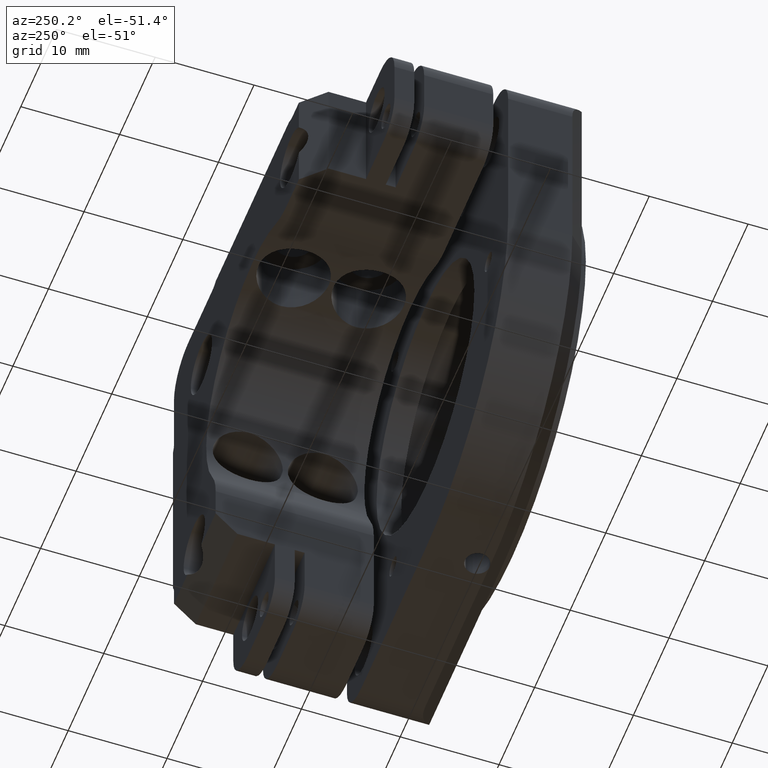
[diagram: clean part render]
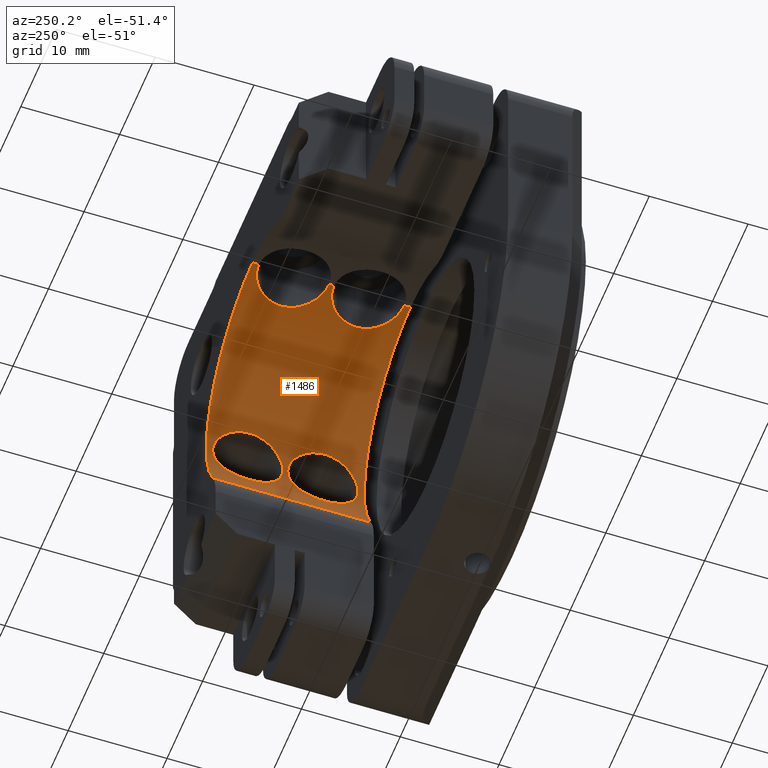
[diagram: same view with one face highlighted and labeled with its STEP entity id]
A machine part, auxiliary view. The second image highlights one B-rep face of the part: STEP entity #1486.
In plain terms, the highlighted cylindrical surface (partial cylindrical patch) has radius 13 mm, axis along (0, 1, 0).
Its self-contained STEP definition (entity closure, byte-faithful):
#77 = CARTESIAN_POINT ( 'NONE',  ( 141.0330478913104700, 70.09290035377264900, -25.55851048984864700 ) ) ;
#113 = EDGE_CURVE ( 'NONE', #2569, #843, #2893, .T. ) ;
#133 = CARTESIAN_POINT ( 'NONE',  ( 141.1535383277341100, 63.26079757182519400, -25.04516060960250100 ) ) ;
#140 = AXIS2_PLACEMENT_3D ( 'NONE', #6717, #3166, #5466 ) ;
#157 = CARTESIAN_POINT ( 'NONE',  ( 140.9352422205957700, 68.51614554544700300, -25.91943090214629900 ) ) ;
#158 = CARTESIAN_POINT ( 'NONE',  ( 140.9967566309561000, 62.06453673318018400, -19.00220452352538200 ) ) ;
#187 = CARTESIAN_POINT ( 'NONE',  ( 141.3162549048651000, 71.59496322165749400, -20.58715690706946000 ) ) ;
#188 = CARTESIAN_POINT ( 'NONE',  ( 140.9675482533430700, 61.84139288891009300, -25.80461543014877500 ) ) ;
#253 = CARTESIAN_POINT ( 'NONE',  ( 130.2562495503778700, 57.80418208018949900, -9.476647169711297300 ) ) ;
#261 = CARTESIAN_POINT ( 'NONE',  ( 128.9088687819144100, 72.05400072298751000, -9.356538082368320600 ) ) ;
#268 = CARTESIAN_POINT ( 'NONE',  ( 141.2188804144732600, 65.84213691339704200, -24.71576345172083200 ) ) ;
#355 = EDGE_CURVE ( 'NONE', #1758, #7256, #3833, .T. ) ;
#416 = CARTESIAN_POINT ( 'NONE',  ( 141.0609236984925900, 59.13402540868237600, -25.44847234909495300 ) ) ;
#446 = CARTESIAN_POINT ( 'NONE',  ( 141.3426965748580500, 65.32852661331207900, -20.78939035598730500 ) ) ;
#467 = CARTESIAN_POINT ( 'NONE',  ( 141.3108644461912300, 57.83737447469201200, -24.15183788684400700 ) ) ;
#514 = CARTESIAN_POINT ( 'NONE',  ( 141.4277006766217300, 57.38960236071629600, -22.83821817093685900 ) ) ;
#552 = B_SPLINE_CURVE_WITH_KNOTS ( 'NONE', 3,
 ( #4858, #1299, #1891, #676, #3692, #5356, #4809, #4883, #1348, #3106, #5458, #187, #1270, #7229, #3667, #3006, #5949, #6004, #1324, #2498, #6602, #6028, #5923, #1847, #1923, #3596, #6551, #3078, #77, #3032, #7202, #7147, #1871, #157 ),
 .UNSPECIFIED., .F., .F.,
 ( 4, 2, 2, 2, 2, 2, 2, 2, 2, 2, 2, 2, 2, 2, 2, 2, 4 ),
 ( 0.006478271953857227400, 0.007175474066478038600, 0.007872676179098848900, 0.008569878291719660100, 0.009267080404340471300, 0.009964282516961282500, 0.01066148462958209400, 0.01135868674220290300, 0.01205588885482371600, 0.01275309096744452500, 0.01345029308006533800, 0.01414749519268614800, 0.01484469730530695700, 0.01554189941792777000, 0.01623910153054858000, 0.01693630364316939300, 0.01763350575579020200 ),
 .UNSPECIFIED. ) ;
#564 = EDGE_CURVE ( 'NONE', #5107, #4384, #1339, .T. ) ;
#643 = CARTESIAN_POINT ( 'NONE',  ( 130.0449066351351100, 57.69624033583704700, -9.448206055807066400 ) ) ;
#676 = CARTESIAN_POINT ( 'NONE',  ( 140.9782169897399100, 69.44209695814298300, -18.93432130144909600 ) ) ;
#705 = CARTESIAN_POINT ( 'NONE',  ( 140.9352422205957700, 61.14885895875145400, -25.91943090214629900 ) ) ;
#751 = CARTESIAN_POINT ( 'NONE',  ( 140.9529625343090500, 61.38512712430807000, -18.84290245899030600 ) ) ;
#773 = ORIENTED_EDGE ( 'NONE', *, *, #1497, .F. ) ;
#793 = CARTESIAN_POINT ( 'NONE',  ( 132.0816351898139900, 68.51614554544700300, -9.871973503120214500 ) ) ;
#805 = CARTESIAN_POINT ( 'NONE',  ( 141.4345159116081200, 64.46615246585852800, -22.60169448826739100 ) ) ;
#820 = CARTESIAN_POINT ( 'NONE',  ( 130.2551931100754500, 65.40353956257307300, -9.476487455404273100 ) ) ;
#822 = CARTESIAN_POINT ( 'NONE',  ( 131.1739221378729500, 58.53375579434947400, -9.640671158258273400 ) ) ;
#843 = VERTEX_POINT ( 'NONE', #5258 ) ;
#870 = CARTESIAN_POINT ( 'NONE',  ( 130.8380795961157300, 65.80732717045957300, -9.572911974570143200 ) ) ;
#886 = CARTESIAN_POINT ( 'NONE',  ( 128.4348757045770200, 57.36746443804704400, -9.350000000000001400 ) ) ;
#961 = CARTESIAN_POINT ( 'NONE',  ( 141.4344945851558500, 57.36619567367861800, -22.60553993055523100 ) ) ;
#979 = VERTEX_POINT ( 'NONE', #5913 ) ;
#989 = CARTESIAN_POINT ( 'NONE',  ( 140.9967354786518000, 59.76827625568785900, -19.00214825927259800 ) ) ;
#1000 = EDGE_CURVE ( 'NONE', #4098, #7256, #7635, .T. ) ;
#1062 = CARTESIAN_POINT ( 'NONE',  ( 128.4348757045770200, 56.71614554938509700, -22.35000000000000100 ) ) ;
#1070 = CARTESIAN_POINT ( 'NONE',  ( 141.0704058492464700, 66.73403806447760200, -19.29045597165415400 ) ) ;
#1104 = EDGE_LOOP ( 'NONE', ( #4277, #2805 ) ) ;
#1151 = VERTEX_POINT ( 'NONE', #6957 ) ;
#1164 = DIRECTION ( 'NONE',  ( 0.0000000000000000000, 1.000000000000000000, 0.0000000000000000000 ) ) ;
#1165 = VERTEX_POINT ( 'NONE', #6256 ) ;
#1211 = CARTESIAN_POINT ( 'NONE',  ( 131.7068078020538700, 59.31082367544659900, -9.768121466196049600 ) ) ;
#1257 = CARTESIAN_POINT ( 'NONE',  ( 128.4348757045770200, 57.36746443804704400, -9.350000000000001400 ) ) ;
#1261 = DIRECTION ( 'NONE',  ( 0.0000000000000000000, 1.000000000000000000, 0.0000000000000000000 ) ) ;
#1270 = CARTESIAN_POINT ( 'NONE',  ( 141.3430680723100700, 71.70527728859913500, -20.79252708450965100 ) ) ;
#1299 = CARTESIAN_POINT ( 'NONE',  ( 140.9462737817417200, 68.74841352833411200, -18.81943090214629800 ) ) ;
#1300 = CARTESIAN_POINT ( 'NONE',  ( 140.9352422205957700, 60.91614554544670300, -25.91943090214629900 ) ) ;
#1324 = CARTESIAN_POINT ( 'NONE',  ( 141.4278177565675800, 72.04310974925999700, -22.83581312828993500 ) ) ;
#1338 = EDGE_CURVE ( 'NONE', #1944, #2149, #6245, .T. ) ;
#1339 = B_SPLINE_CURVE_WITH_KNOTS ( 'NONE', 3,
 ( #1949, #6005, #751, #6029, #158, #3058, #7283, #1892, #4274, #5484, #7179, #6603, #2527, #2001, #5439, #4884, #6633, #805, #3641, #2578, #5512, #3107, #3079, #2499, #6682, #133, #6055, #1973, #6574, #4249, #188, #4859, #705, #1300 ),
 .UNSPECIFIED., .F., .F.,
 ( 4, 2, 2, 2, 2, 2, 2, 2, 2, 2, 2, 2, 2, 2, 2, 2, 4 ),
 ( 0.004655503562086602200, 0.005352252918581791400, 0.006049002275076979800, 0.006745751631572188100, 0.007442500988067395600, 0.008139250344562604800, 0.008835999701057811400, 0.009532749057553018000, 0.01022949841404822600, 0.01092624777054343500, 0.01162299712703864300, 0.01231974648353385000, 0.01301649584002905600, 0.01371324519652426500, 0.01440999455301947300, 0.01510674390951469900, 0.01580349326600992400 ),
 .UNSPECIFIED. ) ;
#1348 = CARTESIAN_POINT ( 'NONE',  ( 141.1619805617106400, 70.86222853241848400, -19.69503729831505400 ) ) ;
#1357 = CARTESIAN_POINT ( 'NONE',  ( 128.4348757045770200, 72.06482665284687500, -9.349999999999999600 ) ) ;
#1376 = CARTESIAN_POINT ( 'NONE',  ( 128.9096332133771300, 64.45389575256098200, -9.356572265664691900 ) ) ;
#1421 = CARTESIAN_POINT ( 'NONE',  ( 132.0574229696146300, 68.03956981338583900, -9.864826675623815400 ) ) ;
#1427 = CARTESIAN_POINT ( 'NONE',  ( 131.8922915524021800, 62.08407137585267300, -9.817827811805914400 ) ) ;
#1486 = ADVANCED_FACE ( 'NONE', ( #1555, #5236, #2761 ), #4036, .F. ) ;
#1497 = EDGE_CURVE ( 'NONE', #4384, #5107, #5441, .T. ) ;
#1504 = CARTESIAN_POINT ( 'NONE',  ( 128.4348757045770200, 56.71614554938509700, -9.350000000000001400 ) ) ;
#1513 = DIRECTION ( 'NONE',  ( 2.135044278125300600E-015, 0.0000000000000000000, 1.000000000000000000 ) ) ;
#1555 = FACE_BOUND ( 'NONE', #6754, .T. ) ;
#1573 = EDGE_CURVE ( 'NONE', #1944, #979, #3115, .T. ) ;
#1589 = CARTESIAN_POINT ( 'NONE',  ( 141.0328915214880400, 59.34072145787459400, -25.55911479443593800 ) ) ;
#1608 = AXIS2_PLACEMENT_3D ( 'NONE', #6207, #2776, #1513 ) ;
#1612 = DIRECTION ( 'NONE',  ( 0.0000000000000000000, 1.000000000000000000, 0.0000000000000000000 ) ) ;
#1641 = CARTESIAN_POINT ( 'NONE',  ( 140.9462737817417200, 60.91614554544670300, -18.81943090214629800 ) ) ;
#1653 = ORIENTED_EDGE ( 'NONE', *, *, #1000, .F. ) ;
#1664 = CARTESIAN_POINT ( 'NONE',  ( 141.4292014147547700, 57.38922140719203200, -21.90256029373406900 ) ) ;
#1673 = CARTESIAN_POINT ( 'NONE',  ( 141.3109946268109500, 65.43679165857551500, -24.15107423172362300 ) ) ;
#1681 = B_SPLINE_CURVE_WITH_KNOTS ( 'NONE', 3,
 ( #793, #4239, #1421, #4418, #6202, #3874, #5552, #2592, #6122, #870, #6096, #820, #2617, #2694, #6151, #3171, #6777, #6697 ),
 .UNSPECIFIED., .F., .F.,
 ( 4, 2, 2, 2, 2, 2, 2, 2, 4 ),
 ( 0.01062670440922161900, 0.01133600254528292800, 0.01204530068134423800, 0.01275459881740554800, 0.01346389695346685700, 0.01417319508952816600, 0.01488249322558947600, 0.01559179136165078600, 0.01630108949771209500 ),
 .UNSPECIFIED. ) ;
#1758 = VERTEX_POINT ( 'NONE', #1504 ) ;
#1808 = VECTOR ( 'NONE', #6374, 1000.000000000000000 ) ;
#1837 = CARTESIAN_POINT ( 'NONE',  ( 132.0816351898139700, 60.67764386539190000, -9.871973503120212700 ) ) ;
#1847 = CARTESIAN_POINT ( 'NONE',  ( 141.2506638792281700, 71.33529596304565200, -24.53953536407471600 ) ) ;
#1871 = CARTESIAN_POINT ( 'NONE',  ( 140.9352422205957700, 68.75112158667452900, -25.91943090214631000 ) ) ;
#1891 = CARTESIAN_POINT ( 'NONE',  ( 140.9528348195274000, 68.98273442893618300, -18.84244085377925500 ) ) ;
#1892 = CARTESIAN_POINT ( 'NONE',  ( 141.1300219676951700, 63.08315973136168300, -19.54809538675204200 ) ) ;
#1923 = CARTESIAN_POINT ( 'NONE',  ( 141.2185534996015100, 71.18860953615997300, -24.71752134321909400 ) ) ;
#1925 = CARTESIAN_POINT ( 'NONE',  ( 130.6719743960236100, 71.38687430811292200, -9.539349535068293300 ) ) ;
#1944 = VERTEX_POINT ( 'NONE', #1357 ) ;
#1949 = CARTESIAN_POINT ( 'NONE',  ( 140.9462737817417200, 60.91614554544670300, -18.81943090214629800 ) ) ;
#1971 = CARTESIAN_POINT ( 'NONE',  ( 132.0816351898139900, 60.91614554544690200, -9.871973503120212700 ) ) ;
#1973 = CARTESIAN_POINT ( 'NONE',  ( 141.0611128565023200, 62.69943716783802000, -25.44765555800565300 ) ) ;
#1996 = CARTESIAN_POINT ( 'NONE',  ( 131.9637703775153200, 61.85365422764385800, -9.838033927933977900 ) ) ;
#2001 = CARTESIAN_POINT ( 'NONE',  ( 141.3876012872644600, 64.28344999604105700, -21.22174598384276900 ) ) ;
#2149 = VERTEX_POINT ( 'NONE', #6739 ) ;
#2158 = CARTESIAN_POINT ( 'NONE',  ( 141.4352254803749000, 57.36609557774529800, -22.13483168606556400 ) ) ;
#2184 = CARTESIAN_POINT ( 'NONE',  ( 140.9528191930493800, 60.45083786465597300, -18.84239290471776200 ) ) ;
#2192 = CARTESIAN_POINT ( 'NONE',  ( 141.1299390990076600, 66.34960055306618200, -19.54771573361567100 ) ) ;
#2269 = CARTESIAN_POINT ( 'NONE',  ( 141.4290761208997900, 64.98970138571047500, -21.89972925309023900 ) ) ;
#2343 = B_SPLINE_CURVE_WITH_KNOTS ( 'NONE', 3,
 ( #3765, #2571, #1376, #6049, #6127, #7224, #2547, #7324, #6726, #4955, #4267, #2622, #6654, #1427, #1996, #4855, #4292, #6677 ),
 .UNSPECIFIED., .F., .F.,
 ( 4, 2, 2, 2, 2, 2, 2, 2, 4 ),
 ( 0.006003326236175158200, 0.006713018358796438200, 0.007422710481417718100, 0.008132402604038998000, 0.008842094726660278800, 0.009551786849281557900, 0.01026147897190283900, 0.01097117109452411900, 0.01168086321714539900 ),
 .UNSPECIFIED. ) ;
#2490 = CARTESIAN_POINT ( 'NONE',  ( 132.0816351898139900, 60.91614554544690200, -9.871973503120212700 ) ) ;
#2498 = CARTESIAN_POINT ( 'NONE',  ( 141.4026096259654800, 71.95167285736867800, -23.29362837286409500 ) ) ;
#2499 = CARTESIAN_POINT ( 'NONE',  ( 141.2510962630788400, 63.73717588144850800, -24.53680377295760800 ) ) ;
#2527 = CARTESIAN_POINT ( 'NONE',  ( 141.3433020604791200, 64.10621123406812700, -20.79481957328622600 ) ) ;
#2547 = CARTESIAN_POINT ( 'NONE',  ( 130.2571590887501400, 64.02761446381219900, -9.476774821206573700 ) ) ;
#2569 = VERTEX_POINT ( 'NONE', #5601 ) ;
#2571 = CARTESIAN_POINT ( 'NONE',  ( 128.6736644199866100, 64.47133754308575200, -9.349999999999999600 ) ) ;
#2578 = CARTESIAN_POINT ( 'NONE',  ( 141.4025038943705700, 64.35128255810094800, -23.29503303134526600 ) ) ;
#2579 = CARTESIAN_POINT ( 'NONE',  ( 132.0816351898139900, 68.51614554544700300, -9.871973503120214500 ) ) ;
#2592 = CARTESIAN_POINT ( 'NONE',  ( 131.3279517005623500, 66.31645445005122500, -9.675267540200136900 ) ) ;
#2605 = CARTESIAN_POINT ( 'NONE',  ( 131.9636781649912200, 69.45391399284113700, -9.838008016095196600 ) ) ;
#2609 = CARTESIAN_POINT ( 'NONE',  ( 141.0332954305549700, 66.93733634434022400, -25.55754978872116100 ) ) ;
#2617 = CARTESIAN_POINT ( 'NONE',  ( 130.0452949881739400, 65.29641597399886200, -9.448253140820529700 ) ) ;
#2622 = CARTESIAN_POINT ( 'NONE',  ( 131.5958600466644300, 62.72413788924946200, -9.739410604414658200 ) ) ;
#2662 = CARTESIAN_POINT ( 'NONE',  ( 141.4345176519504700, 64.96612769175610000, -22.60252763532025400 ) ) ;
#2694 = CARTESIAN_POINT ( 'NONE',  ( 129.6072701915566900, 65.12485761289764200, -9.401099913342905600 ) ) ;
#2761 = FACE_OUTER_BOUND ( 'NONE', #6873, .T. ) ;
#2776 = DIRECTION ( 'NONE',  ( -0.0000000000000000000, -1.000000000000000000, -0.0000000000000000000 ) ) ;
#2785 = CARTESIAN_POINT ( 'NONE',  ( 141.2576487962433900, 65.69518946057174000, -20.20195790089275800 ) ) ;
#2801 = CARTESIAN_POINT ( 'NONE',  ( 140.9352422205957700, 60.91614554544670300, -25.91943090214629900 ) ) ;
#2805 = ORIENTED_EDGE ( 'NONE', *, *, #6046, .F. ) ;
#2806 = CARTESIAN_POINT ( 'NONE',  ( 141.3380339823387400, 57.72816391075776500, -23.94854373532218600 ) ) ;
#2815 = CARTESIAN_POINT ( 'NONE',  ( 141.4052940684135000, 65.08094265455220300, -21.44433136736430600 ) ) ;
#2893 = LINE ( 'NONE', #4412, #5017 ) ;
#2970 = CARTESIAN_POINT ( 'NONE',  ( 130.6544188174501900, 58.06090457978397300, -9.539291817024050600 ) ) ;
#2978 = ORIENTED_EDGE ( 'NONE', *, *, #6567, .F. ) ;
#3006 = CARTESIAN_POINT ( 'NONE',  ( 141.4291409855757100, 72.04283746550650800, -21.90163468005212600 ) ) ;
#3032 = CARTESIAN_POINT ( 'NONE',  ( 140.9863245929336700, 69.66419020050742000, -25.73668168167922200 ) ) ;
#3058 = CARTESIAN_POINT ( 'NONE',  ( 141.0432048501656700, 62.49566642773037700, -19.18162137405741100 ) ) ;
#3071 = CARTESIAN_POINT ( 'NONE',  ( 131.8921760121220600, 59.74758026895576500, -9.817790231832809400 ) ) ;
#3076 = CARTESIAN_POINT ( 'NONE',  ( 140.9462737817417200, 60.91614554544670300, -18.81943090214629800 ) ) ;
#3078 = CARTESIAN_POINT ( 'NONE',  ( 141.0606364763745300, 70.29618689996212300, -25.44961635574766500 ) ) ;
#3079 = CARTESIAN_POINT ( 'NONE',  ( 141.3106310490660200, 63.99395025610856200, -24.15348120435162100 ) ) ;
#3106 = CARTESIAN_POINT ( 'NONE',  ( 141.2261271184146900, 71.19080262355819900, -20.02364829404297100 ) ) ;
#3107 = CARTESIAN_POINT ( 'NONE',  ( 141.3383223413149200, 64.10527063741288600, -23.94615207912626800 ) ) ;
#3115 = LINE ( 'NONE', #3564, #4130 ) ;
#3163 = CARTESIAN_POINT ( 'NONE',  ( 140.9352422205957700, 68.28125076757720500, -25.91943090214628900 ) ) ;
#3166 = DIRECTION ( 'NONE',  ( -0.0000000000000000000, -1.000000000000000000, -0.0000000000000000000 ) ) ;
#3171 = CARTESIAN_POINT ( 'NONE',  ( 128.9077783386946700, 64.97813593535757100, -9.356488090370900700 ) ) ;
#3343 = CARTESIAN_POINT ( 'NONE',  ( 141.2255684174487600, 58.24426427856569400, -20.02069197725160900 ) ) ;
#3349 = EDGE_CURVE ( 'NONE', #1151, #4098, #2343, .T. ) ;
#3367 = CARTESIAN_POINT ( 'NONE',  ( 141.4026302784959300, 57.48054699758051100, -23.29297351353378800 ) ) ;
#3392 = CARTESIAN_POINT ( 'NONE',  ( 141.3872954929842400, 57.55002980990257600, -21.21821784109224000 ) ) ;
#3401 = CARTESIAN_POINT ( 'NONE',  ( 140.9462737817417200, 68.51614554544700300, -18.81943090214629800 ) ) ;
#3421 = CARTESIAN_POINT ( 'NONE',  ( 141.2185835418865200, 58.24352026703822800, -24.71738037450999000 ) ) ;
#3564 = CARTESIAN_POINT ( 'NONE',  ( 128.4348757045770200, 56.71614554938509700, -9.350000000000001400 ) ) ;
#3596 = CARTESIAN_POINT ( 'NONE',  ( 141.1539082922769800, 70.86265264194187800, -25.04328522637825900 ) ) ;
#3641 = CARTESIAN_POINT ( 'NONE',  ( 141.4277470172753800, 64.44285989233749500, -22.83760983452095100 ) ) ;
#3667 = CARTESIAN_POINT ( 'NONE',  ( 141.4054338056403400, 71.95188563400164100, -21.44634951444681200 ) ) ;
#3669 = CARTESIAN_POINT ( 'NONE',  ( 131.3294577030854400, 70.71392554332322800, -9.675612575277554600 ) ) ;
#3692 = CARTESIAN_POINT ( 'NONE',  ( 140.9967190815677300, 69.66386873470628400, -19.00208444670468600 ) ) ;
#3693 = CARTESIAN_POINT ( 'NONE',  ( 129.3760301196616100, 71.97240387530416700, -9.382002837397152500 ) ) ;
#3763 = CARTESIAN_POINT ( 'NONE',  ( 130.8376809170770200, 58.20697328333645300, -9.572835131295287100 ) ) ;
#3765 = CARTESIAN_POINT ( 'NONE',  ( 128.4348757045770200, 64.46482665284675300, -9.350000000000001400 ) ) ;
#3775 = CARTESIAN_POINT ( 'NONE',  ( 141.1542328275708700, 66.16789936025520500, -25.04175918497435700 ) ) ;
#3833 = LINE ( 'NONE', #4095, #1808 ) ;
#3874 = CARTESIAN_POINT ( 'NONE',  ( 131.7070439951004300, 66.91136464672520400, -9.768184472587170900 ) ) ;
#3939 = CARTESIAN_POINT ( 'NONE',  ( 141.0427756846872000, 59.34028575531189600, -19.17993843073236000 ) ) ;
#3963 = CARTESIAN_POINT ( 'NONE',  ( 140.9462737817417200, 60.68188464013955000, -18.81943090214630500 ) ) ;
#3969 = CARTESIAN_POINT ( 'NONE',  ( 141.4278980406905900, 64.98889948270951300, -22.83364038752523900 ) ) ;
#3975 = VERTEX_POINT ( 'NONE', #7123 ) ;
#3988 = CARTESIAN_POINT ( 'NONE',  ( 141.1296809205455000, 58.75106377976705100, -19.54653360267347000 ) ) ;
#4010 = CARTESIAN_POINT ( 'NONE',  ( 140.9352422205957700, 60.68339655200978900, -25.91943090214629600 ) ) ;
#4036 = CYLINDRICAL_SURFACE ( 'NONE', #7617, 13.00000000000000200 ) ;
#4060 = ORIENTED_EDGE ( 'NONE', *, *, #7624, .T. ) ;
#4095 = CARTESIAN_POINT ( 'NONE',  ( 128.4348757045770200, 56.71614554938509700, -9.350000000000001400 ) ) ;
#4098 = VERTEX_POINT ( 'NONE', #1971 ) ;
#4130 = VECTOR ( 'NONE', #1164, 1000.000000000000000 ) ;
#4158 = EDGE_CURVE ( 'NONE', #843, #979, #7346, .T. ) ;
#4185 = CARTESIAN_POINT ( 'NONE',  ( 131.5938188440778700, 59.10482934600722200, -9.738903758690009100 ) ) ;
#4239 = CARTESIAN_POINT ( 'NONE',  ( 132.0816351898139700, 68.27690668779582900, -9.871973503120191400 ) ) ;
#4240 = CARTESIAN_POINT ( 'NONE',  ( 129.3770155418619700, 57.46004621621845100, -9.382053112572299000 ) ) ;
#4249 = CARTESIAN_POINT ( 'NONE',  ( 140.9861859921165000, 62.06276731877612500, -25.73719857294590000 ) ) ;
#4267 = CARTESIAN_POINT ( 'NONE',  ( 131.3292676581401400, 63.11422717740590100, -9.675565806154510900 ) ) ;
#4274 = CARTESIAN_POINT ( 'NONE',  ( 141.1624762083295400, 63.26485480857461900, -19.69748027896755700 ) ) ;
#4277 = ORIENTED_EDGE ( 'NONE', *, *, #5817, .F. ) ;
#4292 = CARTESIAN_POINT ( 'NONE',  ( 132.0816351898139900, 61.15473790364367100, -9.871973503120216300 ) ) ;
#4339 = DIRECTION ( 'NONE',  ( 0.0000000000000000000, 1.000000000000000000, 0.0000000000000000000 ) ) ;
#4367 = CARTESIAN_POINT ( 'NONE',  ( 129.6070419333120800, 57.52479178004058000, -9.401080627790591400 ) ) ;
#4382 = CARTESIAN_POINT ( 'NONE',  ( 141.2509388983895300, 65.69577505075332600, -24.53788278934121400 ) ) ;
#4384 = VERTEX_POINT ( 'NONE', #2801 ) ;
#4412 = CARTESIAN_POINT ( 'NONE',  ( 139.6217154267385200, 56.71614554938509700, -28.97228185980251400 ) ) ;
#4418 = CARTESIAN_POINT ( 'NONE',  ( 131.9631900599268000, 67.57660572724557800, -9.837869908086053900 ) ) ;
#4531 = CARTESIAN_POINT ( 'NONE',  ( 141.1538165064403400, 58.57011107203951600, -25.04373732683776400 ) ) ;
#4563 = CARTESIAN_POINT ( 'NONE',  ( 141.1616889029759500, 66.17169141755678700, -19.69369083689806700 ) ) ;
#4591 = CARTESIAN_POINT ( 'NONE',  ( 141.3160064171010500, 65.43836869011379100, -20.58532830623621700 ) ) ;
#4636 = EDGE_CURVE ( 'NONE', #2569, #1758, #7441, .T. ) ;
#4746 = CARTESIAN_POINT ( 'NONE',  ( 131.9630376241448500, 59.97606357537917900, -9.837826806240451900 ) ) ;
#4809 = CARTESIAN_POINT ( 'NONE',  ( 141.0706724868291500, 70.30012842303285900, -19.29155792843876700 ) ) ;
#4855 = CARTESIAN_POINT ( 'NONE',  ( 132.0578249875329100, 61.38991762811468800, -9.864943688779250800 ) ) ;
#4858 = CARTESIAN_POINT ( 'NONE',  ( 140.9462737817417200, 68.51614554544700300, -18.81943090214629800 ) ) ;
#4859 = CARTESIAN_POINT ( 'NONE',  ( 140.9420104449256100, 61.38536899430155800, -25.89595961223193800 ) ) ;
#4883 = CARTESIAN_POINT ( 'NONE',  ( 141.1301776366436200, 70.68407601343344000, -19.54879720813803000 ) ) ;
#4884 = CARTESIAN_POINT ( 'NONE',  ( 141.4293246157927500, 64.44354152038901900, -21.90543249454091100 ) ) ;
#4912 = CARTESIAN_POINT ( 'NONE',  ( 129.6080995712257200, 71.90720795801060200, -9.401166924041620000 ) ) ;
#4916 = CARTESIAN_POINT ( 'NONE',  ( 140.9352422205957700, 68.51614554544700300, -25.91943090214629900 ) ) ;
#4938 = CARTESIAN_POINT ( 'NONE',  ( 130.2665497797238200, 71.64901815171687400, -9.472115889492318500 ) ) ;
#4943 = CARTESIAN_POINT ( 'NONE',  ( 140.9419851012534700, 68.04782161005125800, -25.89604641130835500 ) ) ;
#4955 = CARTESIAN_POINT ( 'NONE',  ( 131.1760526924541100, 63.29615003755407800, -9.641134589412214200 ) ) ;
#5017 = VECTOR ( 'NONE', #4339, 1000.000000000000000 ) ;
#5107 = VERTEX_POINT ( 'NONE', #3076 ) ;
#5190 = CARTESIAN_POINT ( 'NONE',  ( 141.3428508911727300, 57.72792030804572500, -20.79106260145769300 ) ) ;
#5196 = CARTESIAN_POINT ( 'NONE',  ( 141.3876923896104400, 65.14845263295251200, -21.22222253783502300 ) ) ;
#5215 = ORIENTED_EDGE ( 'NONE', *, *, #1338, .F. ) ;
#5236 = FACE_BOUND ( 'NONE', #1104, .T. ) ;
#5255 = LINE ( 'NONE', #6517, #6182 ) ;
#5258 = CARTESIAN_POINT ( 'NONE',  ( 139.6217166182893300, 72.71614554938510400, -28.97227984694746900 ) ) ;
#5294 = ORIENTED_EDGE ( 'NONE', *, *, #4158, .F. ) ;
#5356 = CARTESIAN_POINT ( 'NONE',  ( 141.0428008491812800, 70.09223293686265800, -19.18003609987434600 ) ) ;
#5439 = CARTESIAN_POINT ( 'NONE',  ( 141.4053325657427500, 64.35149766542326700, -21.44413489649606000 ) ) ;
#5441 = B_SPLINE_CURVE_WITH_KNOTS ( 'NONE', 3,
 ( #5716, #4010, #6966, #6891, #6917, #1589, #416, #6284, #4531, #3421, #6313, #467, #2806, #6864, #3367, #514, #961, #2158, #1664, #5690, #3392, #5190, #5765, #6265, #3343, #6941, #3988, #7469, #3939, #989, #7493, #2184, #3963, #1641 ),
 .UNSPECIFIED., .F., .F.,
 ( 4, 2, 2, 2, 2, 2, 2, 2, 2, 2, 2, 2, 2, 2, 2, 2, 4 ),
 ( 0.01580349326600992400, 0.01650034915024600800, 0.01719720503448208700, 0.01789406091871817100, 0.01859091680295425100, 0.01928777268719033400, 0.01998462857142641700, 0.02068148445566249700, 0.02137834033989857700, 0.02207519622413466100, 0.02277205210837074400, 0.02346890799260682400, 0.02416576387684290700, 0.02486261976107898700, 0.02555947564531507000, 0.02625633152955115400, 0.02695318741378723400 ),
 .UNSPECIFIED. ) ;
#5458 = CARTESIAN_POINT ( 'NONE',  ( 141.2579932172375800, 71.33866955393639800, -20.20402629829642600 ) ) ;
#5461 = CARTESIAN_POINT ( 'NONE',  ( 131.1757112349013700, 70.89653852863364100, -9.641059659901081600 ) ) ;
#5466 = DIRECTION ( 'NONE',  ( 0.0000000000000000000, 0.0000000000000000000, 1.000000000000000000 ) ) ;
#5484 = CARTESIAN_POINT ( 'NONE',  ( 141.2261851708307500, 63.59101176341420800, -20.02404265040967600 ) ) ;
#5486 = CARTESIAN_POINT ( 'NONE',  ( 131.8922956773271800, 69.68413823594490000, -9.817827538560564400 ) ) ;
#5512 = CARTESIAN_POINT ( 'NONE',  ( 141.3842184223945800, 64.28369224898031600, -23.51668750886751300 ) ) ;
#5520 = CARTESIAN_POINT ( 'NONE',  ( 140.9674203703830800, 67.59273750981904500, -25.80507667225482000 ) ) ;
#5552 = CARTESIAN_POINT ( 'NONE',  ( 131.5941592624150200, 66.70535200443060800, -9.738986597135602000 ) ) ;
#5601 = CARTESIAN_POINT ( 'NONE',  ( 139.6217166182893300, 56.71614554938509700, -28.97227984694746500 ) ) ;
#5622 = ORIENTED_EDGE ( 'NONE', *, *, #1573, .T. ) ;
#5690 = CARTESIAN_POINT ( 'NONE',  ( 141.4053012933022200, 57.48091422095972500, -21.44404028772118000 ) ) ;
#5698 = CARTESIAN_POINT ( 'NONE',  ( 141.2255780744996800, 65.84416765234581700, -20.02068992167726000 ) ) ;
#5716 = CARTESIAN_POINT ( 'NONE',  ( 140.9352422205957700, 60.91614554544670300, -25.91943090214629900 ) ) ;
#5722 = CARTESIAN_POINT ( 'NONE',  ( 140.9781881077525700, 67.59059301757128000, -18.93421567705169700 ) ) ;
#5743 = CARTESIAN_POINT ( 'NONE',  ( 140.9966631212878700, 67.36913729067217100, -19.00188350183052300 ) ) ;
#5765 = CARTESIAN_POINT ( 'NONE',  ( 141.3162987042219100, 57.83707057902571300, -20.58720460290807000 ) ) ;
#5767 = B_SPLINE_CURVE_WITH_KNOTS ( 'NONE', 3,
 ( #4916, #3163, #4943, #5520, #6110, #2609, #6715, #7309, #3775, #268, #4382, #1673, #6171, #7367, #7525, #3969, #2662, #6766, #2269, #2815, #5196, #446, #4591, #2785, #5698, #4563, #2192, #1070, #6924, #5743, #5722, #5776, #6900, #3401 ),
 .UNSPECIFIED., .F., .F.,
 ( 4, 2, 2, 2, 2, 2, 2, 2, 2, 2, 2, 2, 2, 2, 2, 2, 4 ),
 ( 0.01763350575579020200, 0.01833046675027650800, 0.01902742774476281300, 0.01972438873924911600, 0.02042134973373542100, 0.02111831072822172700, 0.02181527172270803000, 0.02251223271719433500, 0.02320919371168064100, 0.02390615470616694700, 0.02460311570065325200, 0.02530007669513955500, 0.02599703768962586100, 0.02669399868411216600, 0.02739095967859846900, 0.02808792067308477400, 0.02878488166757108000 ),
 .UNSPECIFIED. ) ;
#5776 = CARTESIAN_POINT ( 'NONE',  ( 140.9528220579268200, 68.04991163963417500, -18.84239573509034600 ) ) ;
#5813 = ORIENTED_EDGE ( 'NONE', *, *, #564, .F. ) ;
#5817 = EDGE_CURVE ( 'NONE', #3975, #1165, #5767, .T. ) ;
#5879 = CARTESIAN_POINT ( 'NONE',  ( 128.6730242490548300, 72.07132008797846400, -9.350000000000003200 ) ) ;
#5890 = CARTESIAN_POINT ( 'NONE',  ( 131.3280478919894600, 58.71662034534009700, -9.675291922092828400 ) ) ;
#5913 = CARTESIAN_POINT ( 'NONE',  ( 128.4348757045770200, 72.71614554938510400, -9.350000000000001400 ) ) ;
#5923 = CARTESIAN_POINT ( 'NONE',  ( 141.3109001664353200, 71.59512596315765600, -24.15180068422931100 ) ) ;
#5949 = CARTESIAN_POINT ( 'NONE',  ( 141.4352403844766000, 72.06626687234981400, -22.13789755962390200 ) ) ;
#6004 = CARTESIAN_POINT ( 'NONE',  ( 141.4344761786829000, 72.06602325149872000, -22.60466992209521600 ) ) ;
#6005 = CARTESIAN_POINT ( 'NONE',  ( 140.9462737817417200, 61.15037063949708300, -18.81943090214629800 ) ) ;
#6028 = CARTESIAN_POINT ( 'NONE',  ( 141.3382017700327800, 71.70478070377674800, -23.94699068103604800 ) ) ;
#6029 = CARTESIAN_POINT ( 'NONE',  ( 140.9781168899517400, 61.84020394522860200, -18.93395966001778100 ) ) ;
#6046 = EDGE_CURVE ( 'NONE', #1165, #3975, #552, .T. ) ;
#6049 = CARTESIAN_POINT ( 'NONE',  ( 129.3760971849624800, 64.37236356121256600, -9.382013991971723100 ) ) ;
#6055 = CARTESIAN_POINT ( 'NONE',  ( 141.1212611021033200, 63.08240412511757700, -25.19129549996698400 ) ) ;
#6080 = CARTESIAN_POINT ( 'NONE',  ( 131.7080166180804500, 70.11890780465866200, -9.768440159042953000 ) ) ;
#6096 = CARTESIAN_POINT ( 'NONE',  ( 130.6546607739821000, 65.66102203181642900, -9.539323400449518400 ) ) ;
#6110 = CARTESIAN_POINT ( 'NONE',  ( 140.9863790690234300, 67.36738553056842700, -25.73649059223956900 ) ) ;
#6122 = CARTESIAN_POINT ( 'NONE',  ( 131.1740471577105000, 66.13391092645005600, -9.640699975835470800 ) ) ;
#6127 = CARTESIAN_POINT ( 'NONE',  ( 129.6083574749783900, 64.30714267802743200, -9.401186676948757500 ) ) ;
#6151 = CARTESIAN_POINT ( 'NONE',  ( 129.3760773195743600, 65.05985950997178700, -9.381995983692975800 ) ) ;
#6171 = CARTESIAN_POINT ( 'NONE',  ( 141.3384310503336100, 65.32659549375600200, -23.94516704635976400 ) ) ;
#6182 = VECTOR ( 'NONE', #1261, 1000.000000000000000 ) ;
#6202 = CARTESIAN_POINT ( 'NONE',  ( 131.8920109544805300, 67.34720690983142800, -9.817746286033459700 ) ) ;
#6207 = CARTESIAN_POINT ( 'NONE',  ( 128.4348757045770200, 72.71614554938510400, -22.35000000000000100 ) ) ;
#6245 = B_SPLINE_CURVE_WITH_KNOTS ( 'NONE', 3,
 ( #7180, #5879, #261, #3693, #4912, #4938, #1925, #5461, #3669, #6635, #6080, #5486, #2605, #6709, #7304, #2579 ),
 .UNSPECIFIED., .F., .F.,
 ( 4, 2, 2, 2, 2, 2, 2, 4 ),
 ( 0.004950779125099652600, 0.005660269785614912400, 0.006369760446130171400, 0.007788741767160675300, 0.008498232427675911700, 0.009207723088191146300, 0.009917213748706382700, 0.01062670440922161900 ),
 .UNSPECIFIED. ) ;
#6256 = CARTESIAN_POINT ( 'NONE',  ( 140.9462737817417200, 68.51614554544700300, -18.81943090214629800 ) ) ;
#6265 = CARTESIAN_POINT ( 'NONE',  ( 141.2572248178060200, 58.09706714641047400, -20.19921657848512500 ) ) ;
#6284 = CARTESIAN_POINT ( 'NONE',  ( 141.1215584177669500, 58.74802689356336300, -25.19001770727109600 ) ) ;
#6313 = CARTESIAN_POINT ( 'NONE',  ( 141.2513043642196400, 58.09417767882881400, -24.53560340797108100 ) ) ;
#6374 = DIRECTION ( 'NONE',  ( 0.0000000000000000000, 1.000000000000000000, 0.0000000000000000000 ) ) ;
#6514 = CARTESIAN_POINT ( 'NONE',  ( 128.6717047000902300, 57.36100698216370800, -9.350000000000003200 ) ) ;
#6517 = CARTESIAN_POINT ( 'NONE',  ( 128.4348757045770200, 56.71614554938509700, -9.350000000000001400 ) ) ;
#6551 = CARTESIAN_POINT ( 'NONE',  ( 141.1210268660522300, 70.68112732482264000, -25.19236263127703900 ) ) ;
#6567 = EDGE_CURVE ( 'NONE', #2149, #7113, #1681, .T. ) ;
#6574 = CARTESIAN_POINT ( 'NONE',  ( 141.0329758093847900, 62.49238943479745200, -25.55879694837561500 ) ) ;
#6602 = CARTESIAN_POINT ( 'NONE',  ( 141.3839448468861500, 71.88264974987588100, -23.51953458028573600 ) ) ;
#6603 = CARTESIAN_POINT ( 'NONE',  ( 141.3163797835297000, 63.99553050739191200, -20.58791124582433700 ) ) ;
#6625 = ORIENTED_EDGE ( 'NONE', *, *, #3349, .F. ) ;
#6633 = CARTESIAN_POINT ( 'NONE',  ( 141.4352067697218700, 64.46613862188471000, -22.13695581605773600 ) ) ;
#6635 = CARTESIAN_POINT ( 'NONE',  ( 131.5954442076189500, 70.32476989484918300, -9.739309762125195400 ) ) ;
#6654 = CARTESIAN_POINT ( 'NONE',  ( 131.7083716998938300, 62.51814650620174500, -9.768533945998861200 ) ) ;
#6677 = CARTESIAN_POINT ( 'NONE',  ( 132.0816351898139900, 60.91614554544690200, -9.871973503120212700 ) ) ;
#6682 = CARTESIAN_POINT ( 'NONE',  ( 141.2189881537773600, 63.59079077690957100, -24.71531996132563000 ) ) ;
#6697 = CARTESIAN_POINT ( 'NONE',  ( 128.4348757045767700, 64.96746443804511300, -9.349999999999445400 ) ) ;
#6709 = CARTESIAN_POINT ( 'NONE',  ( 132.0576860102751200, 68.99079726609770100, -9.864903456566668900 ) ) ;
#6715 = CARTESIAN_POINT ( 'NONE',  ( 141.0609520491667600, 66.73390643292509600, -25.44833174040547200 ) ) ;
#6717 = CARTESIAN_POINT ( 'NONE',  ( 128.4348757045770200, 56.71614554938509700, -22.35000000000000100 ) ) ;
#6726 = CARTESIAN_POINT ( 'NONE',  ( 130.8404174446116900, 63.62296837131688000, -9.573354108364265300 ) ) ;
#6739 = CARTESIAN_POINT ( 'NONE',  ( 132.0816351898139900, 68.51614554544700300, -9.871973503120214500 ) ) ;
#6754 = EDGE_LOOP ( 'NONE', ( #773, #5813 ) ) ;
#6766 = CARTESIAN_POINT ( 'NONE',  ( 141.4352055207905000, 64.96616341993994600, -22.13579067204610200 ) ) ;
#6777 = CARTESIAN_POINT ( 'NONE',  ( 128.6720937795058700, 64.96099637339878500, -9.349999999999996100 ) ) ;
#6830 = ORIENTED_EDGE ( 'NONE', *, *, #355, .T. ) ;
#6864 = CARTESIAN_POINT ( 'NONE',  ( 141.3840924062024000, 57.54906647461749700, -23.51817054793147200 ) ) ;
#6873 = EDGE_LOOP ( 'NONE', ( #7434, #6830, #1653, #6625, #4060, #2978, #5215, #5622, #5294, #6896 ) ) ;
#6891 = CARTESIAN_POINT ( 'NONE',  ( 140.9674051632767100, 59.99237098940184900, -25.80513652180005500 ) ) ;
#6896 = ORIENTED_EDGE ( 'NONE', *, *, #113, .F. ) ;
#6900 = CARTESIAN_POINT ( 'NONE',  ( 140.9462737817417500, 68.28395788937149300, -18.81943090214630500 ) ) ;
#6917 = CARTESIAN_POINT ( 'NONE',  ( 140.9863345951684400, 59.76811349464965400, -25.73663549925308700 ) ) ;
#6924 = CARTESIAN_POINT ( 'NONE',  ( 141.0425872069593000, 66.94185051411305700, -19.17919602298577400 ) ) ;
#6941 = CARTESIAN_POINT ( 'NONE',  ( 141.1619946436529700, 58.57007715647716100, -19.69520444279341100 ) ) ;
#6957 = CARTESIAN_POINT ( 'NONE',  ( 128.4348757045770200, 64.46482665284675300, -9.350000000000001400 ) ) ;
#6966 = CARTESIAN_POINT ( 'NONE',  ( 140.9417829567155400, 60.45208238682812400, -25.89676387765756600 ) ) ;
#7094 = CARTESIAN_POINT ( 'NONE',  ( 128.9075039339589600, 57.37806510539230200, -9.356467127646297400 ) ) ;
#7113 = VERTEX_POINT ( 'NONE', #7208 ) ;
#7123 = CARTESIAN_POINT ( 'NONE',  ( 140.9352422205957700, 68.51614554544700300, -25.91943090214629900 ) ) ;
#7137 = CARTESIAN_POINT ( 'NONE',  ( 132.0573283471674400, 60.43889871521209800, -9.864799103998640500 ) ) ;
#7147 = CARTESIAN_POINT ( 'NONE',  ( 140.9419038470763600, 68.98236555380233900, -25.89633145918348900 ) ) ;
#7179 = CARTESIAN_POINT ( 'NONE',  ( 141.2576666579608700, 63.73721501170781800, -20.20194593189965500 ) ) ;
#7180 = CARTESIAN_POINT ( 'NONE',  ( 128.4348757045770200, 72.06482665284687500, -9.349999999999999600 ) ) ;
#7202 = CARTESIAN_POINT ( 'NONE',  ( 140.9672801317700200, 69.43768894969210200, -25.80558374937419000 ) ) ;
#7208 = CARTESIAN_POINT ( 'NONE',  ( 128.4348757045767700, 64.96746443804511300, -9.349999999999445400 ) ) ;
#7224 = CARTESIAN_POINT ( 'NONE',  ( 130.0477442424239300, 64.13477969258653400, -9.448547329067270800 ) ) ;
#7229 = CARTESIAN_POINT ( 'NONE',  ( 141.3878830833039900, 71.88457521578388300, -21.22449925298480600 ) ) ;
#7256 = VERTEX_POINT ( 'NONE', #886 ) ;
#7283 = CARTESIAN_POINT ( 'NONE',  ( 141.0705384737544800, 62.69917514733717900, -19.29100760260415400 ) ) ;
#7304 = CARTESIAN_POINT ( 'NONE',  ( 132.0816351898140200, 68.75544933958696000, -9.871973503120191400 ) ) ;
#7309 = CARTESIAN_POINT ( 'NONE',  ( 141.1213275321991600, 66.34943540535371700, -25.19102155191334100 ) ) ;
#7324 = CARTESIAN_POINT ( 'NONE',  ( 130.6554581611296400, 63.77062405163062700, -9.539470862224114000 ) ) ;
#7346 = CIRCLE ( 'NONE', #1608, 13.00000000000000200 ) ;
#7367 = CARTESIAN_POINT ( 'NONE',  ( 141.3841536565370800, 65.14885297428961100, -23.51726132021807600 ) ) ;
#7434 = ORIENTED_EDGE ( 'NONE', *, *, #4636, .T. ) ;
#7441 = CIRCLE ( 'NONE', #140, 13.00000000000000200 ) ;
#7469 = CARTESIAN_POINT ( 'NONE',  ( 141.0699961426653600, 59.13689001686098800, -19.28875273339081500 ) ) ;
#7493 = CARTESIAN_POINT ( 'NONE',  ( 140.9778974284060100, 59.99499233328910500, -18.93315602477702300 ) ) ;
#7525 = CARTESIAN_POINT ( 'NONE',  ( 141.4027728199117200, 65.08001702001426700, -23.29137232659823200 ) ) ;
#7548 = DIRECTION ( 'NONE',  ( 0.0000000000000000000, 0.0000000000000000000, 1.000000000000000000 ) ) ;
#7617 = AXIS2_PLACEMENT_3D ( 'NONE', #1062, #1612, #7548 ) ;
#7624 = EDGE_CURVE ( 'NONE', #1151, #7113, #5255, .T. ) ;
#7635 = B_SPLINE_CURVE_WITH_KNOTS ( 'NONE', 3,
 ( #2490, #1837, #7137, #4746, #3071, #1211, #4185, #5890, #822, #3763, #2970, #253, #643, #4367, #4240, #7094, #6514, #1257 ),
 .UNSPECIFIED., .F., .F.,
 ( 4, 2, 2, 2, 2, 2, 2, 2, 4 ),
 ( 0.01168086321714539900, 0.01239028561795588700, 0.01309970801876637500, 0.01380913041957686200, 0.01451855282038735100, 0.01522797522119783900, 0.01593739762200832600, 0.01664682002281881600, 0.01735624242362930300 ),
 .UNSPECIFIED. ) ;